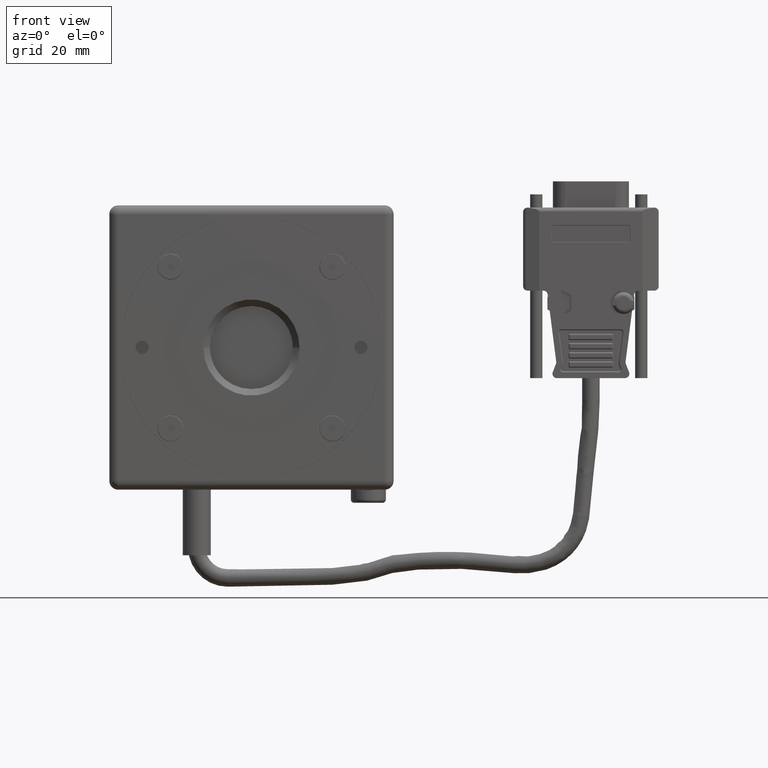
[diagram: clean part render]
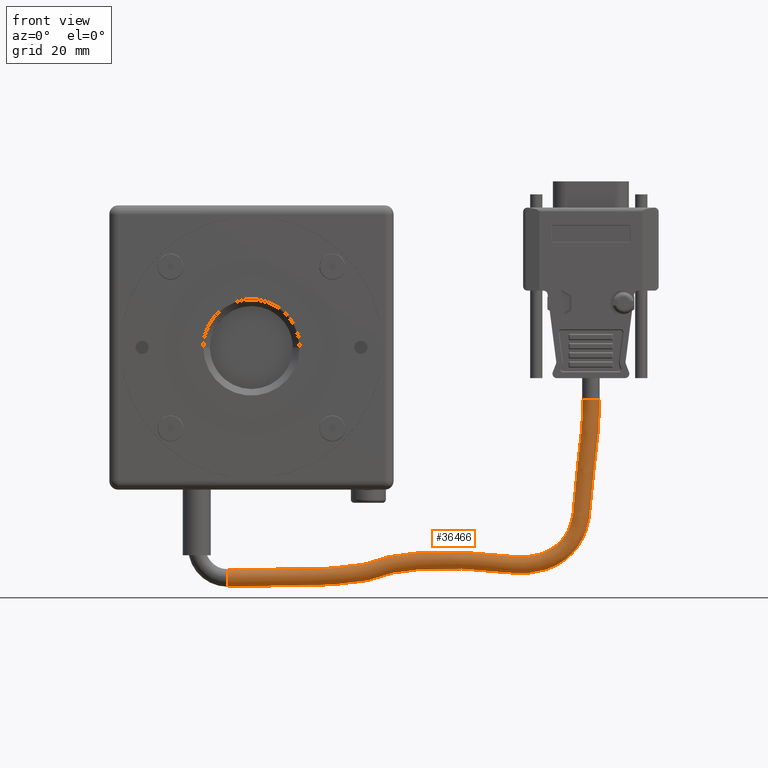
[diagram: same view with one face highlighted and labeled with its STEP entity id]
A machine part, front view. The second image highlights one B-rep face of the part: STEP entity #36466.
In plain terms, the highlighted face is a freeform B-spline surface patch.
Its self-contained STEP definition (entity closure, byte-faithful):
#159 = CARTESIAN_POINT ( 'NONE',  ( 26.18031135847389734, 8.594251661636770123, -49.75526893230109948 ) ) ;
#771 = CARTESIAN_POINT ( 'NONE',  ( 26.95663252120139930, 8.361872805652700080, -52.70969915211109935 ) ) ;
#948 = CARTESIAN_POINT ( 'NONE',  ( 74.81228610184200534, 9.131163623069181057, -25.28025515376619836 ) ) ;
#972 = CARTESIAN_POINT ( 'NONE',  ( 23.53500575126230032, 8.080911860483370290, -51.00779947442729423 ) ) ;
#1157 = CARTESIAN_POINT ( 'NONE',  ( 28.63113973919019983, 9.131163623069191715, -48.61853963026069891 ) ) ;
#1181 = CARTESIAN_POINT ( 'NONE',  ( 23.64569939889049977, 7.949545518040059378, -52.20404720577050028 ) ) ;
#1385 = CARTESIAN_POINT ( 'NONE',  ( 31.80338191991370067, 9.131163623069191715, -47.74780247666389243 ) ) ;
#1405 = CARTESIAN_POINT ( 'NONE',  ( 68.62212123036789535, 7.949545518040059378, -48.88649633827099450 ) ) ;
#1587 = CARTESIAN_POINT ( 'NONE',  ( 27.87414163134669920, 9.131163623069181057, -48.89281985560339905 ) ) ;
#1610 = CARTESIAN_POINT ( 'NONE',  ( 27.83103989088519725, 8.080911860483380948, -49.87624758810920156 ) ) ;
#1770 = CARTESIAN_POINT ( 'NONE',  ( 78.87626390488098593, 8.425974528290661070, -11.99280345650299218 ) ) ;
#1819 = CARTESIAN_POINT ( 'NONE',  ( 79.62215232788869912, 10.00000000000000000, -11.99280345650299928 ) ) ;
#2046 = CARTESIAN_POINT ( 'NONE',  ( 31.27227696123909695, 10.00000000000000000, -51.75450217347029991 ) ) ;
#2245 = CARTESIAN_POINT ( 'NONE',  ( 69.16217605017111225, 8.361872805652708962, -49.99946688267060324 ) ) ;
#2446 = CARTESIAN_POINT ( 'NONE',  ( 77.93863295144920755, 10.00000000000000000, -30.69413562672749762 ) ) ;
#2650 = CARTESIAN_POINT ( 'NONE',  ( 44.47319135313559713, 10.00000000000000000, -50.47784886212969724 ) ) ;
#2896 = CARTESIAN_POINT ( 'NONE',  ( 50.18714193146750802, 10.00000000000000000, -50.66608199942090351 ) ) ;
#3313 = CARTESIAN_POINT ( 'NONE',  ( 23.45128163584819703, 9.131163479876750699, -50.10349296217269455 ) ) ;
#3363 = CARTESIAN_POINT ( 'NONE',  ( -5.453913893494759968, 9.401601399316229291, -54.68831693468300159 ) ) ;
#3715 = CARTESIAN_POINT ( 'NONE',  ( 38.11571756769220087, 9.131163479876750699, -46.88733830446920336 ) ) ;
#3919 = CARTESIAN_POINT ( 'NONE',  ( 38.17811516388759685, 8.080911860483370290, -47.79090664084470319 ) ) ;
#4111 = CARTESIAN_POINT ( 'NONE',  ( 74.04699277715069172, 9.131163623069191715, -32.32333939750819951 ) ) ;
#4132 = CARTESIAN_POINT ( 'NONE',  ( -5.453913893494759968, 8.361872805652700080, -54.18589274550730295 ) ) ;
#4305 = CARTESIAN_POINT ( 'NONE',  ( 71.02879771056058189, 9.131163623069181057, -43.96551939401319942 ) ) ;
#4325 = CARTESIAN_POINT ( 'NONE',  ( 33.40648793696419716, 8.080911860483370290, -48.33048998664639839 ) ) ;
#4516 = CARTESIAN_POINT ( 'NONE',  ( 53.78038645207209356, 9.131163623069191715, -47.18262561935669908 ) ) ;
#4542 = CARTESIAN_POINT ( 'NONE',  ( 76.07704327603160266, 8.594251661636770123, -16.09036882613499841 ) ) ;
#4718 = CARTESIAN_POINT ( 'NONE',  ( 79.62215232788869912, 10.00000000000000000, -11.99280345650299928 ) ) ;
#4747 = CARTESIAN_POINT ( 'NONE',  ( 52.10246080053369866, 9.131163623069191715, -47.02530900306780381 ) ) ;
#4772 = CARTESIAN_POINT ( 'NONE',  ( 76.72348328632989478, 8.080911860483370290, -11.99280345650299928 ) ) ;
#4924 = CARTESIAN_POINT ( 'NONE',  ( 78.49627403889677169, 8.187194641589938371, -11.99280345650299573 ) ) ;
#4976 = CARTESIAN_POINT ( 'NONE',  ( 50.18714193146750802, 10.00000000000000000, -50.66608199942090351 ) ) ;
#5142 = B_SPLINE_CURVE_WITH_KNOTS ( 'NONE', 3,
 ( #23453, #39240, #10388, #36063, #20316, #33562, #40305, #18388, #15026, #8512, #4924, #1770, #5343, #34175, #27683, #31235, #5549, #4718 ),
 .UNSPECIFIED., .F., .F.,
 ( 4, 2, 2, 2, 2, 2, 2, 2, 4 ),
 ( 0.000000000000000000, 0.1250000000000000000, 0.2500000000000000000, 0.3750000000000000000, 0.5000000000000000000, 0.6250000000000000000, 0.7500000000000000000, 0.8750000000000000000, 1.000000000000000000 ),
 .UNSPECIFIED. ) ;
#5343 = CARTESIAN_POINT ( 'NONE',  ( 79.04593819644335895, 8.577612628838428677, -11.99280345650299395 ) ) ;
#5403 = CARTESIAN_POINT ( 'NONE',  ( 59.13915167317840371, 8.361872805652700080, -51.08204271905488980 ) ) ;
#5451 = CARTESIAN_POINT ( 'NONE',  ( 3.156507300013169814, 10.00000000000000000, -54.68831693468300159 ) ) ;
#5549 = CARTESIAN_POINT ( 'NONE',  ( 79.62215232788869912, 9.775607412921281991, -11.99280345650299573 ) ) ;
#5600 = CARTESIAN_POINT ( 'NONE',  ( 50.18715518971440304, 9.401601399316229291, -50.66608488657889353 ) ) ;
#5637 = CARTESIAN_POINT ( 'NONE',  ( 76.83822991529379465, 10.00000000000000000, -41.91618704674380069 ) ) ;
#5792 = CARTESIAN_POINT ( 'NONE',  ( 29.99879980739260077, 9.401601399316229291, -52.15858377725389516 ) ) ;
#5976 = CARTESIAN_POINT ( 'NONE',  ( 75.81933112705499411, 9.131623541843559622, -11.99280345650299928 ) ) ;
#6263 = CARTESIAN_POINT ( 'NONE',  ( 33.31636202987490236, 8.594251661636759465, -47.68936614891070036 ) ) ;
#6462 = CARTESIAN_POINT ( 'NONE',  ( 73.84202933722319528, 9.131163479876740041, -36.33860714833080152 ) ) ;
#6513 = CARTESIAN_POINT ( 'NONE',  ( -5.453913893494769738, 10.00000000000000000, -54.68831693468300159 ) ) ;
#6677 = CARTESIAN_POINT ( 'NONE',  ( 63.77694163641329794, 8.594251661636759465, -48.20895064553410236 ) ) ;
#7085 = CARTESIAN_POINT ( 'NONE',  ( 30.55151303057740009, 8.080911860483370290, -48.94122344829860083 ) ) ;
#7267 = CARTESIAN_POINT ( 'NONE',  ( 73.94451102273660581, 9.131163623069181057, -34.33097327153610934 ) ) ;
#7290 = CARTESIAN_POINT ( 'NONE',  ( 55.35509803920700023, 8.080911860483380948, -48.23959804872180257 ) ) ;
#7482 = CARTESIAN_POINT ( 'NONE',  ( 75.14665999025430665, 9.131163623069181057, -22.34954634257200112 ) ) ;
#7505 = CARTESIAN_POINT ( 'NONE',  ( 76.03959857329940064, 8.080911860483380948, -22.88963306837419864 ) ) ;
#7692 = CARTESIAN_POINT ( 'NONE',  ( 36.18155229556710140, 9.131163623069181057, -47.10553250178589479 ) ) ;
#7712 = CARTESIAN_POINT ( 'NONE',  ( 76.07704327603160266, 8.594251661636770123, -11.99280345650299928 ) ) ;
#7907 = CARTESIAN_POINT ( 'NONE',  ( 32.61805028934179518, 9.131163623069181057, -47.60644390709960305 ) ) ;
#7932 = CARTESIAN_POINT ( 'NONE',  ( 3.153023570603019632, 8.361872805652700080, -54.18589274550730295 ) ) ;
#8138 = CARTESIAN_POINT ( 'NONE',  ( 70.18225426691620328, 9.131163623069191715, -44.94648982542589977 ) ) ;
#8162 = CARTESIAN_POINT ( 'NONE',  ( 15.21791553571540057, 9.401601399316229291, -54.50863875091230426 ) ) ;
#8512 = CARTESIAN_POINT ( 'NONE',  ( 78.28603931373957892, 8.100103659892539554, -11.99280345650299751 ) ) ;
#8564 = CARTESIAN_POINT ( 'NONE',  ( 76.34602931551530958, 8.361872805652700080, -41.76415107456309528 ) ) ;
#8778 = CARTESIAN_POINT ( 'NONE',  ( 79.62215232788869912, 9.401601399316229291, -11.99280345650299928 ) ) ;
#8828 = CARTESIAN_POINT ( 'NONE',  ( 29.99843418388410043, 10.00000000000000000, -52.15867678578100453 ) ) ;
#8940 = ORIENTED_EDGE ( 'NONE', *, *, #11088, .F. ) ;
#8974 = CARTESIAN_POINT ( 'NONE',  ( 77.13931597836050003, 8.361872805652689422, -36.47110528814399544 ) ) ;
#9014 = CARTESIAN_POINT ( 'NONE',  ( 78.90879333579060528, 10.00000000000000000, -23.29669238185569924 ) ) ;
#9220 = CARTESIAN_POINT ( 'NONE',  ( 77.64111683582380863, 10.00000000000000000, -36.49117046966799904 ) ) ;
#9633 = VERTEX_POINT ( 'NONE', #27819 ) ;
#9640 = CARTESIAN_POINT ( 'NONE',  ( 28.71922818070569861, 9.131163479876740041, -48.57433793111140119 ) ) ;
#9686 = CARTESIAN_POINT ( 'NONE',  ( -5.453913893494759968, 8.080911860483370290, -51.78964789312419725 ) ) ;
#9839 = CARTESIAN_POINT ( 'NONE',  ( 50.40839177826129713, 8.594251661636770123, -47.12627307768360652 ) ) ;
#10049 = CARTESIAN_POINT ( 'NONE',  ( 75.81837593933809671, 9.131163479876750699, -16.07514509790649626 ) ) ;
#10163 = EDGE_CURVE ( 'NONE', #9633, #33287, #37879, .T. ) ;
#10249 = CARTESIAN_POINT ( 'NONE',  ( 28.80621856193450014, 8.594251661636759465, -48.81808269678150225 ) ) ;
#10388 = CARTESIAN_POINT ( 'NONE',  ( 76.04936005796797360, 8.744342200751550109, -11.99280345650299928 ) ) ;
#10416 = CARTESIAN_POINT ( 'NONE',  ( 72.92480848983079511, 9.131163623069191715, -40.58203784414799742 ) ) ;
#10438 = CARTESIAN_POINT ( 'NONE',  ( 50.29332692823059858, 7.949545518040059378, -48.96724385649110189 ) ) ;
#10630 = CARTESIAN_POINT ( 'NONE',  ( 61.61116919951200543, 9.131163623069181057, -47.87339134726179424 ) ) ;
#10654 = CARTESIAN_POINT ( 'NONE',  ( 33.57335261102240054, 7.949545518040059378, -49.51795309020260305 ) ) ;
#10874 = CARTESIAN_POINT ( 'NONE',  ( 29.42631471453660197, 7.949545518040059378, -50.55543263328679870 ) ) ;
#11061 = CARTESIAN_POINT ( 'NONE',  ( 29.15756396327159905, 9.131163623069191715, -48.43482237142159619 ) ) ;
#11084 = CARTESIAN_POINT ( 'NONE',  ( 77.92077010635719603, 7.949545518040059378, -16.19893182539600218 ) ) ;
#11088 = EDGE_CURVE ( 'NONE', #25181, #11286, #5142, .T. ) ;
#11281 = CARTESIAN_POINT ( 'NONE',  ( 20.67094813567929990, 9.131163623069191715, -50.30556177848880139 ) ) ;
#11286 = VERTEX_POINT ( 'NONE', #25311 ) ;
#11302 = CARTESIAN_POINT ( 'NONE',  ( 59.25836506663029724, 7.949545518040059378, -49.88994666697519875 ) ) ;
#11708 = CARTESIAN_POINT ( 'NONE',  ( 3.156554336057880050, 9.401601399316229291, -54.68831693468300159 ) ) ;
#11909 = CARTESIAN_POINT ( 'NONE',  ( 27.08481906306359832, 10.00000000000000000, -53.19757564393709259 ) ) ;
#12124 = CARTESIAN_POINT ( 'NONE',  ( 31.27232112239369854, 9.401601399316229291, -51.75452151905409437 ) ) ;
#12169 = CARTESIAN_POINT ( 'NONE',  ( 44.47319135313559713, 10.00000000000000000, -50.47784886212969724 ) ) ;
#12573 = CARTESIAN_POINT ( 'NONE',  ( 71.25675322186189931, 9.131163479876750699, -44.09442399391860334 ) ) ;
#12990 = CARTESIAN_POINT ( 'NONE',  ( 30.39077777371069899, 8.594251661636770123, -48.31382842640690001 ) ) ;
#13238 = CARTESIAN_POINT ( 'NONE',  ( -5.453913893494759968, 9.131623787557160199, -50.88549561549499600 ) ) ;
#13395 = CARTESIAN_POINT ( 'NONE',  ( 50.42453514468979847, 9.131163479876750699, -46.86799245566150773 ) ) ;
#13580 = CARTESIAN_POINT ( 'NONE',  ( 58.13120777560720143, 9.131163623069191715, -47.64635773217790415 ) ) ;
#13601 = CARTESIAN_POINT ( 'NONE',  ( 26.34524625582049850, 8.080911860483380948, -50.38295894293310084 ) ) ;
#13784 = CARTESIAN_POINT ( 'NONE',  ( 27.16254985613620221, 9.131163623069191715, -49.14800968359290323 ) ) ;
#13809 = CARTESIAN_POINT ( 'NONE',  ( 15.16985130657540104, 7.949545518040059378, -52.80941046865879684 ) ) ;
#13994 = CARTESIAN_POINT ( 'NONE',  ( 38.20789706003289865, 9.131163623069191715, -46.96033699992470645 ) ) ;
#14021 = CARTESIAN_POINT ( 'NONE',  ( -5.453913893494759968, 8.080911860483370290, -51.78964789312419725 ) ) ;
#14219 = CARTESIAN_POINT ( 'NONE',  ( 59.33531009058300043, 9.131163623069181057, -47.74141807301540297 ) ) ;
#14243 = CARTESIAN_POINT ( 'NONE',  ( 72.88172367973649557, 7.949545518040059378, -45.51175300234510246 ) ) ;
#14421 = CARTESIAN_POINT ( 'NONE',  ( 26.81313802070809871, 9.131163623069181057, -49.26670723036900057 ) ) ;
#14444 = CARTESIAN_POINT ( 'NONE',  ( 33.74057410945639646, 8.361872805652700080, -50.70702696980870172 ) ) ;
#14883 = CARTESIAN_POINT ( 'NONE',  ( 77.64111683582380863, 10.00000000000000000, -36.49117046966799904 ) ) ;
#15026 = CARTESIAN_POINT ( 'NONE',  ( 77.84851024854363288, 8.000221481040293625, -11.99280345650299928 ) ) ;
#15078 = CARTESIAN_POINT ( 'NONE',  ( 28.85353365900790124, 9.401601399316229291, -52.58843852000700281 ) ) ;
#15279 = CARTESIAN_POINT ( 'NONE',  ( 78.90879333579060528, 10.00000000000000000, -23.29669238185569924 ) ) ;
#15494 = CARTESIAN_POINT ( 'NONE',  ( 55.02447939474739513, 10.00000000000000000, -51.12080225404159961 ) ) ;
#15542 = CARTESIAN_POINT ( 'NONE',  ( 69.38850648928648468, 10.00000000000000000, -50.46599396214259770 ) ) ;
#15730 = CARTESIAN_POINT ( 'NONE',  ( 55.02447939474739513, 10.00000000000000000, -51.12080225404159961 ) ) ;
#15735 = CARTESIAN_POINT ( 'NONE',  ( 15.11761342227559979, 8.594251661636759465, -50.96803643689939634 ) ) ;
#16168 = CARTESIAN_POINT ( 'NONE',  ( 23.47520455136799811, 8.594251661636770123, -50.36193294192510450 ) ) ;
#16556 = CARTESIAN_POINT ( 'NONE',  ( 59.46765560473910028, 9.131163479876740041, -47.79956554903549915 ) ) ;
#16766 = CARTESIAN_POINT ( 'NONE',  ( 15.20394584516230019, 8.361872805652700080, -54.00682323242200056 ) ) ;
#16957 = CARTESIAN_POINT ( 'NONE',  ( 74.26393654692709845, 9.131163623069191715, -30.06065986806569867 ) ) ;
#16978 = CARTESIAN_POINT ( 'NONE',  ( 15.13595419297440081, 8.080911860483370290, -51.61364841781030321 ) ) ;
#17161 = CARTESIAN_POINT ( 'NONE',  ( 9.120277782437680614, 9.131163623069191715, -50.79712001305890112 ) ) ;
#17186 = CARTESIAN_POINT ( 'NONE',  ( 63.83257771198010033, 8.080911860483370290, -48.86304863488970085 ) ) ;
#17377 = CARTESIAN_POINT ( 'NONE',  ( 29.74201170429289931, 9.131163623069191715, -48.24880171184300082 ) ) ;
#17405 = CARTESIAN_POINT ( 'NONE',  ( 3.144780548801249687, 7.949545518040059378, -52.98693471315150560 ) ) ;
#17601 = CARTESIAN_POINT ( 'NONE',  ( 44.40423568373750385, 9.131163623069181057, -46.73972045238929951 ) ) ;
#17624 = CARTESIAN_POINT ( 'NONE',  ( 74.40714792227718988, 8.594251661636770123, -30.34143991916279859 ) ) ;
#17825 = CARTESIAN_POINT ( 'NONE',  ( 23.80308077626330032, 10.00000000000000000, -53.90392392813999578 ) ) ;
#18001 = CARTESIAN_POINT ( 'NONE',  ( 75.78791191293690588, 9.131163553076639516, -14.37966857232540008 ) ) ;
#18026 = CARTESIAN_POINT ( 'NONE',  ( 64.08190718532149788, 9.401601399316229291, -51.79613031770490039 ) ) ;
#18249 = CARTESIAN_POINT ( 'NONE',  ( 78.41148780047738853, 8.361872805652700080, -23.22613368627100172 ) ) ;
#18292 = CARTESIAN_POINT ( 'NONE',  ( 15.21811078762899960, 10.00000000000000000, -54.50861485520960059 ) ) ;
#18388 = CARTESIAN_POINT ( 'NONE',  ( 77.62130900020636659, 7.987451535506710165, -11.99280345650299751 ) ) ;
#18444 = CARTESIAN_POINT ( 'NONE',  ( 33.81054736007340011, 10.00000000000000000, -51.20534729594459833 ) ) ;
#18593 = B_SPLINE_SURFACE_WITH_KNOTS ( 'NONE', 3, 3, ( 
 ( #29014, #22288, #41424, #3313, #35515, #19734, #9640, #29210, #18912, #3715, #31760, #13395, #38683, #16556, #23096, #35732, #12573, #22481, #6462, #26049, #19313, #10049, #25426 ),
 ( #26261, #39096, #15735, #16168, #159, #28581, #10249, #12990, #6263, #22681, #25842, #9839, #19108, #31956, #6677, #19539, #38886, #22895, #29820, #17624, #36759, #4542, #7712 ),
 ( #14021, #33177, #16978, #972, #13601, #1610, #36343, #7085, #4325, #3919, #26886, #20153, #7290, #20362, #17186, #29623, #30034, #39726, #23294, #33390, #7505, #20790, #4772 ),
 ( #39296, #17405, #13809, #1181, #32762, #30258, #10874, #23724, #10654, #26662, #36548, #10438, #27099, #11302, #20566, #1405, #14243, #39923, #39502, #19936, #36117, #11084, #23511 ),
 ( #4132, #7932, #16766, #23933, #771, #33617, #32977, #30468, #14444, #27300, #40141, #35920, #26463, #5403, #37589, #2245, #27738, #8564, #8974, #30886, #18249, #21402, #40973 ),
 ( #21815, #11708, #8162, #37798, #31495, #15078, #5792, #12124, #21621, #34226, #40564, #5600, #34444, #21000, #18026, #31101, #24974, #34637, #24365, #27926, #33820, #24561, #8778 ),
 ( #37386, #40757, #27525, #17825, #11909, #24760, #18640, #2046, #18444, #24153, #2650, #4976, #15494, #31291, #28341, #41177, #36987, #30666, #14883, #2446, #15279, #28132, #1819 ) ),
 .UNSPECIFIED., .F., .F., .F.,
 ( 4, 1, 1, 1, 4 ),
 ( 4, 1, 1, 1, 1, 1, 1, 1, 1, 1, 1, 1, 1, 1, 1, 1, 1, 1, 1, 1, 4 ),
 ( 0.4487989505128279766, 1.346396851538479877, 1.570796326794899889, 2.243994752564140160, 3.141592653589790007 ),
 ( 1.000000000000000000, 1.178571428571429935, 1.357142857142859871, 1.535714285714290028, 1.625000000000000000, 1.714285714285709972, 1.833333333333329929, 1.952380952380949886, 2.190476190476190244, 2.428571428571429713, 2.666666666666670071, 2.904761904761900215, 3.142857142857139685, 3.380952380952380043, 3.857142857142859871, 4.214285714285709972, 4.571428571428570287, 4.928571428571429713, 5.285714285714290028, 5.642857142857140573, 6.000000000000000000 ),
 .UNSPECIFIED. ) ;
#18640 = CARTESIAN_POINT ( 'NONE',  ( 29.99843418388410043, 10.00000000000000000, -52.15867678578100453 ) ) ;
#18906 = CARTESIAN_POINT ( 'NONE',  ( 33.81054736007340011, 10.00000000000000000, -51.20534729594459833 ) ) ;
#18912 = CARTESIAN_POINT ( 'NONE',  ( 33.28030440412970137, 9.131163479876740041, -47.43282396948229973 ) ) ;
#19108 = CARTESIAN_POINT ( 'NONE',  ( 55.42880979012469567, 8.594251661636770123, -47.59705121963079222 ) ) ;
#19313 = CARTESIAN_POINT ( 'NONE',  ( 75.14369195526481349, 9.131163479876740041, -22.76252997859669946 ) ) ;
#19394 = EDGE_CURVE ( 'NONE', #9633, #25181, #26010, .T. ) ;
#19539 = CARTESIAN_POINT ( 'NONE',  ( 67.79160732360840314, 8.594251661636770123, -47.17478570750190414 ) ) ;
#19734 = CARTESIAN_POINT ( 'NONE',  ( 27.51196171588700068, 9.131163479876750699, -49.02931220136770207 ) ) ;
#19936 = CARTESIAN_POINT ( 'NONE',  ( 76.24379258714809282, 7.949545518040059378, -30.52487456548870171 ) ) ;
#20153 = CARTESIAN_POINT ( 'NONE',  ( 50.36804648765109960, 8.080911860483370290, -47.77174639775780207 ) ) ;
#20316 = CARTESIAN_POINT ( 'NONE',  ( 76.55231978945425908, 8.295356232861887946, -11.99280345650299751 ) ) ;
#20341 = CARTESIAN_POINT ( 'NONE',  ( 27.51834574374149867, 9.131163623069181057, -49.02041476959809785 ) ) ;
#20362 = CARTESIAN_POINT ( 'NONE',  ( 59.37758483955920497, 8.080911860483380948, -48.69949864240130211 ) ) ;
#20547 = CARTESIAN_POINT ( 'NONE',  ( 28.23632157112909979, 9.131163623069191715, -48.75632757439000642 ) ) ;
#20566 = CARTESIAN_POINT ( 'NONE',  ( 63.93558500996169869, 7.949545518040059378, -50.07453807500559861 ) ) ;
#20762 = CARTESIAN_POINT ( 'NONE',  ( 40.23424182449870301, 9.131163623069191715, -46.81514149806350389 ) ) ;
#20790 = CARTESIAN_POINT ( 'NONE',  ( 76.72348328632989478, 8.080911860483370290, -16.12838066096130163 ) ) ;
#20975 = CARTESIAN_POINT ( 'NONE',  ( 71.87534115420500314, 9.131163623069181057, -42.98454896260059854 ) ) ;
#21000 = CARTESIAN_POINT ( 'NONE',  ( 59.08882957576980033, 9.401601399316229291, -51.58162025226020120 ) ) ;
#21402 = CARTESIAN_POINT ( 'NONE',  ( 79.11972813871300048, 8.361872805652700080, -16.26927288702290042 ) ) ;
#21599 = CARTESIAN_POINT ( 'NONE',  ( 75.73621847383991224, 9.131163574134420813, -15.48189050442799974 ) ) ;
#21621 = CARTESIAN_POINT ( 'NONE',  ( 33.81038618854299926, 9.401601399316229291, -51.20540807094799618 ) ) ;
#21815 = CARTESIAN_POINT ( 'NONE',  ( -5.453913893494759968, 9.401601399316229291, -54.68831693468300159 ) ) ;
#22068 = CARTESIAN_POINT ( 'NONE',  ( 79.62215232788869912, 10.00000000000000000, -16.29900096866879977 ) ) ;
#22284 = CARTESIAN_POINT ( 'NONE',  ( 23.80308077626330032, 10.00000000000000000, -53.90392392813999578 ) ) ;
#22288 = CARTESIAN_POINT ( 'NONE',  ( 3.130274417249329755, 9.131163479876750699, -50.88454054613239919 ) ) ;
#22331 = CARTESIAN_POINT ( 'NONE',  ( -5.453913893494759968, 7.949545518040059378, -52.98693471315150560 ) ) ;
#22481 = CARTESIAN_POINT ( 'NONE',  ( 73.11251719309990449, 9.131163479876740041, -40.76479901385969384 ) ) ;
#22681 = CARTESIAN_POINT ( 'NONE',  ( 38.13354947437520082, 8.594251661636770123, -47.14556590486679966 ) ) ;
#22895 = CARTESIAN_POINT ( 'NONE',  ( 73.36587648119748906, 8.594251661636759465, -40.84309633079880086 ) ) ;
#23096 = CARTESIAN_POINT ( 'NONE',  ( 63.75468279335488830, 9.131163479876740041, -47.94721728388280013 ) ) ;
#23270 = CARTESIAN_POINT ( 'NONE',  ( 73.59885855405839550, 9.131163623069170399, -37.81400442803529671 ) ) ;
#23294 = CARTESIAN_POINT ( 'NONE',  ( 74.74602173575709685, 8.080911860483380948, -36.37492618512060005 ) ) ;
#23453 = CARTESIAN_POINT ( 'NONE',  ( 75.81933112705499411, 9.131623541843559622, -11.99280345650299928 ) ) ;
#23487 = CARTESIAN_POINT ( 'NONE',  ( 66.36828770455399251, 9.131163623069181057, -47.27216809855430313 ) ) ;
#23511 = CARTESIAN_POINT ( 'NONE',  ( 77.92077010635719603, 7.949545518040059378, -11.99280345650299928 ) ) ;
#23724 = CARTESIAN_POINT ( 'NONE',  ( 30.84923094209359817, 7.949545518040059378, -50.10324375487189741 ) ) ;
#23912 = CARTESIAN_POINT ( 'NONE',  ( 31.06492068261399808, 9.131163623069191715, -47.90529176446419513 ) ) ;
#23933 = CARTESIAN_POINT ( 'NONE',  ( 23.75668376245010194, 8.361872805652700080, -53.40191678944600540 ) ) ;
#24122 = CARTESIAN_POINT ( 'NONE',  ( 62.61607427516259605, 9.131163623069181057, -47.82299451225379983 ) ) ;
#24153 = CARTESIAN_POINT ( 'NONE',  ( 38.37794145464279438, 10.00000000000000000, -50.68464812008179621 ) ) ;
#24340 = CARTESIAN_POINT ( 'NONE',  ( 75.61589446810650372, 9.131163623149481268, -18.04747252788299861 ) ) ;
#24365 = CARTESIAN_POINT ( 'NONE',  ( 77.64110680570080092, 9.401601399316220409, -36.49095404294919831 ) ) ;
#24561 = CARTESIAN_POINT ( 'NONE',  ( 79.62215232788869912, 9.401601399316229291, -16.29940234639160224 ) ) ;
#24760 = CARTESIAN_POINT ( 'NONE',  ( 28.85306223624990096, 10.00000000000000000, -52.58857332431879428 ) ) ;
#24808 = CARTESIAN_POINT ( 'NONE',  ( 27.08481906306359832, 10.00000000000000000, -53.19757564393709259 ) ) ;
#24974 = CARTESIAN_POINT ( 'NONE',  ( 74.19684970016830050, 9.401601399316229291, -46.65872576031900110 ) ) ;
#25015 = CARTESIAN_POINT ( 'NONE',  ( 64.08200876101739141, 10.00000000000000000, -51.79607871950790354 ) ) ;
#25181 = VERTEX_POINT ( 'NONE', #39786 ) ;
#25311 = CARTESIAN_POINT ( 'NONE',  ( 79.62215232788869912, 10.00000000000000000, -11.99280345650299928 ) ) ;
#25420 = CARTESIAN_POINT ( 'NONE',  ( 31.27227696123909695, 10.00000000000000000, -51.75450217347029991 ) ) ;
#25426 = CARTESIAN_POINT ( 'NONE',  ( 75.81837593933809671, 9.131163479876750699, -11.99280345650299928 ) ) ;
#25842 = CARTESIAN_POINT ( 'NONE',  ( 44.47141945145779829, 8.594251661636770123, -46.92964154496859663 ) ) ;
#26010 = B_SPLINE_CURVE_WITH_KNOTS ( 'NONE', 3,
 ( #27080, #33367, #17161, #39704, #39902, #11281, #30010, #39271, #30446, #30646, #14421, #13784, #20341, #1587, #20547, #1157, #11061, #17377, #27278, #23912, #1385, #7907, #36740, #7692, #13994, #20762, #36527, #17601, #26440, #33157, #33594, #4747, #4516, #26861, #30232, #13580, #14219, #40120, #10630, #24122, #36960, #23487, #26641, #36321, #8138, #4305, #20975, #33799, #10416, #32954, #23270, #36095, #7267, #4111, #16957, #29801, #948, #7482, #30860, #24340, #21599, #18001, #34201, #5976 ),
 .UNSPECIFIED., .F., .F.,
 ( 4, 3, 3, 3, 3, 3, 3, 3, 3, 3, 3, 3, 3, 3, 3, 3, 3, 3, 3, 3, 3, 4 ),
 ( 4.285207182748905302E-18, 0.03571428571428601068, 0.07142857142857200747, 0.1071428571428579973, 0.1250000000000000000, 0.1428571428571420165, 0.1666666666666660190, 0.1904761904761899938, 0.2380952380952379988, 0.2857142857142860315, 0.3333333333333340365, 0.3809523809523799875, 0.4285714285714279925, 0.4761904761904759975, 0.5714285714285719520, 0.6428571428571420165, 0.7142857142857139685, 0.7857142857142859205, 0.8571428571428579835, 0.9285714285714280480, 0.9785348020337809594, 1.000000000000000000 ),
 .UNSPECIFIED. ) ;
#26049 = CARTESIAN_POINT ( 'NONE',  ( 74.14947460028530202, 9.131163479876750699, -30.31570553034370263 ) ) ;
#26261 = CARTESIAN_POINT ( 'NONE',  ( -5.453913893494759968, 8.594251661636770123, -51.14320788282589803 ) ) ;
#26440 = CARTESIAN_POINT ( 'NONE',  ( 46.45570528141390554, 9.131163623069181057, -46.73649614425229970 ) ) ;
#26463 = CARTESIAN_POINT ( 'NONE',  ( 55.08186687726109909, 8.361872805652700080, -50.62141202611329760 ) ) ;
#26641 = CARTESIAN_POINT ( 'NONE',  ( 67.93369779640320871, 9.131163623069181057, -46.43010387277450235 ) ) ;
#26662 = CARTESIAN_POINT ( 'NONE',  ( 38.26064907319670283, 7.949545518040059378, -48.98615887268140057 ) ) ;
#26861 = CARTESIAN_POINT ( 'NONE',  ( 55.28757319584040175, 9.131163623069191715, -47.33788780163419574 ) ) ;
#26886 = CARTESIAN_POINT ( 'NONE',  ( 44.47174846138999271, 8.080911860483380948, -47.57664480705380328 ) ) ;
#27080 = CARTESIAN_POINT ( 'NONE',  ( -5.453913893494759968, 9.131623787557160199, -50.88549561549499600 ) ) ;
#27099 = CARTESIAN_POINT ( 'NONE',  ( 55.21849635790360367, 7.949545518040059378, -49.42966768741059980 ) ) ;
#27278 = CARTESIAN_POINT ( 'NONE',  ( 30.40346619345349666, 9.131163623069191715, -48.07704673815359797 ) ) ;
#27300 = CARTESIAN_POINT ( 'NONE',  ( 38.34331326211659530, 8.361872805652700080, -50.18307656083879920 ) ) ;
#27303 = B_SPLINE_CURVE_WITH_KNOTS ( 'NONE', 3,
 ( #34278, #5451, #18292, #22284, #24808, #28384, #8828, #25420, #18906, #31544, #12169, #2896, #15730, #34483, #25015, #15542, #38266, #5637, #9220, #38043, #9014, #22068, #28574 ),
 .UNSPECIFIED., .F., .F.,
 ( 4, 1, 1, 1, 1, 1, 1, 1, 1, 1, 1, 1, 1, 1, 1, 1, 1, 1, 1, 1, 4 ),
 ( 0.000000000000000000, 0.03571428571428600374, 0.07142857142857200747, 0.1071428571428579973, 0.1250000000000000000, 0.1428571428571420165, 0.1666666666666660190, 0.1904761904761899938, 0.2380952380952379988, 0.2857142857142860315, 0.3333333333333340365, 0.3809523809523799875, 0.4285714285714279925, 0.4761904761904759975, 0.5714285714285719520, 0.6428571428571420165, 0.7142857142857139685, 0.7857142857142859205, 0.8571428571428579835, 0.9285714285714280480, 1.000000000000000000 ),
 .UNSPECIFIED. ) ;
#27525 = CARTESIAN_POINT ( 'NONE',  ( 15.21811078762899960, 10.00000000000000000, -54.50861485520960059 ) ) ;
#27683 = CARTESIAN_POINT ( 'NONE',  ( 79.43581582867959412, 9.127660192909434755, -11.99280345650299395 ) ) ;
#27738 = CARTESIAN_POINT ( 'NONE',  ( 73.80832698729429353, 8.361872805652689422, -46.32004256861630154 ) ) ;
#27819 = CARTESIAN_POINT ( 'NONE',  ( -5.453913893494759968, 9.131623787557160199, -50.88549561549499600 ) ) ;
#27926 = CARTESIAN_POINT ( 'NONE',  ( 77.93865607959489239, 9.401601399316229291, -30.69417690252300090 ) ) ;
#28132 = CARTESIAN_POINT ( 'NONE',  ( 79.62215232788869912, 10.00000000000000000, -16.29900096866879977 ) ) ;
#28341 = CARTESIAN_POINT ( 'NONE',  ( 64.08200876101739141, 10.00000000000000000, -51.79607871950790354 ) ) ;
#28384 = CARTESIAN_POINT ( 'NONE',  ( 28.85306223624990096, 10.00000000000000000, -52.58857332431879428 ) ) ;
#28525 = CARTESIAN_POINT ( 'NONE',  ( -5.453913893494769738, 10.00000000000000000, -54.68831693468300159 ) ) ;
#28574 = CARTESIAN_POINT ( 'NONE',  ( 79.62215232788869912, 10.00000000000000000, -11.99280345650299928 ) ) ;
#28581 = CARTESIAN_POINT ( 'NONE',  ( 27.60316133532310090, 8.594251661636770123, -49.27135151716469608 ) ) ;
#29014 = CARTESIAN_POINT ( 'NONE',  ( -5.453913893494759968, 9.131163479876750699, -50.88454054613239919 ) ) ;
#29210 = CARTESIAN_POINT ( 'NONE',  ( 30.32645946246769952, 9.131163479876750699, -48.06278111921780294 ) ) ;
#29623 = CARTESIAN_POINT ( 'NONE',  ( 68.08279457566769111, 8.080911860483380948, -47.77491058132649471 ) ) ;
#29801 = CARTESIAN_POINT ( 'NONE',  ( 74.48088031670340570, 9.131163623069181057, -27.79798033862330087 ) ) ;
#29820 = CARTESIAN_POINT ( 'NONE',  ( 74.10037779369969257, 8.594251661636770123, -36.34898138709259996 ) ) ;
#30010 = CARTESIAN_POINT ( 'NONE',  ( 22.59372142665040073, 9.131163623069191715, -50.08464922200299441 ) ) ;
#30034 = CARTESIAN_POINT ( 'NONE',  ( 71.95630390544010879, 8.080911860483370290, -44.70460478055969844 ) ) ;
#30232 = CARTESIAN_POINT ( 'NONE',  ( 56.79475993960889468, 9.131163623069191715, -47.49314998391169240 ) ) ;
#30258 = CARTESIAN_POINT ( 'NONE',  ( 28.25327361894289879, 7.949545518040059378, -50.99654000622479799 ) ) ;
#30446 = CARTESIAN_POINT ( 'NONE',  ( 25.58170780577509973, 9.131163623069191715, -49.62398043778660650 ) ) ;
#30468 = CARTESIAN_POINT ( 'NONE',  ( 31.14733046683089768, 8.361872805652700080, -51.26687117466899934 ) ) ;
#30546 = EDGE_LOOP ( 'NONE', ( #32792, #40342, #40326, #8940 ) ) ;
#30646 = CARTESIAN_POINT ( 'NONE',  ( 26.40266128239720089, 9.131163623069191715, -49.38579829950819544 ) ) ;
#30666 = CARTESIAN_POINT ( 'NONE',  ( 76.83822991529379465, 10.00000000000000000, -41.91618704674380069 ) ) ;
#30860 = CARTESIAN_POINT ( 'NONE',  ( 75.38055025473349247, 9.131163623069181057, -20.29955295876850130 ) ) ;
#30886 = CARTESIAN_POINT ( 'NONE',  ( 77.43813037894130957, 8.361872805652708962, -30.64413400284530198 ) ) ;
#31101 = CARTESIAN_POINT ( 'NONE',  ( 69.38853854532590049, 9.401601399316229291, -50.46621092342580539 ) ) ;
#31235 = CARTESIAN_POINT ( 'NONE',  ( 79.58403579825494489, 9.551262569157026761, -11.99280345650299395 ) ) ;
#31291 = CARTESIAN_POINT ( 'NONE',  ( 59.08905432818589532, 10.00000000000000000, -51.58160251168809651 ) ) ;
#31495 = CARTESIAN_POINT ( 'NONE',  ( 27.08481108426239814, 9.401601399316229291, -53.19763025593459815 ) ) ;
#31544 = CARTESIAN_POINT ( 'NONE',  ( 38.37794145464279438, 10.00000000000000000, -50.68464812008179621 ) ) ;
#31760 = CARTESIAN_POINT ( 'NONE',  ( 44.47129034765769973, 9.131163479876740041, -46.67074809203489849 ) ) ;
#31956 = CARTESIAN_POINT ( 'NONE',  ( 59.44190915986020229, 8.594251661636770123, -48.05675458467560190 ) ) ;
#32762 = CARTESIAN_POINT ( 'NONE',  ( 26.65072312411659894, 7.949545518040059378, -51.54553865695490344 ) ) ;
#32792 = ORIENTED_EDGE ( 'NONE', *, *, #19394, .F. ) ;
#32954 = CARTESIAN_POINT ( 'NONE',  ( 73.35568783979410057, 9.131163623069181057, -39.28940171050669505 ) ) ;
#32977 = CARTESIAN_POINT ( 'NONE',  ( 29.82932376544010111, 8.361872805652700080, -51.68527420233470338 ) ) ;
#33157 = CARTESIAN_POINT ( 'NONE',  ( 48.44012021520460110, 9.131163623069191715, -46.80224426551569650 ) ) ;
#33177 = CARTESIAN_POINT ( 'NONE',  ( 3.136512905789879735, 8.080911860483370290, -51.78964789312419725 ) ) ;
#33287 = VERTEX_POINT ( 'NONE', #28525 ) ;
#33367 = CARTESIAN_POINT ( 'NONE',  ( 3.130267931594580055, 9.131163623233259585, -50.88454047706769501 ) ) ;
#33390 = CARTESIAN_POINT ( 'NONE',  ( 75.05110181138330461, 8.080911860483370290, -30.40574967361450121 ) ) ;
#33562 = CARTESIAN_POINT ( 'NONE',  ( 76.95667333039946811, 8.100660710395160891, -11.99280345650299751 ) ) ;
#33594 = CARTESIAN_POINT ( 'NONE',  ( 50.27129050786920317, 9.131163623069191715, -46.91377663429179989 ) ) ;
#33617 = CARTESIAN_POINT ( 'NONE',  ( 28.67573428344250175, 8.361872805652700080, -52.11849980332490873 ) ) ;
#33799 = CARTESIAN_POINT ( 'NONE',  ( 72.49392913986740439, 9.131163623069191715, -41.87467397778929978 ) ) ;
#33820 = CARTESIAN_POINT ( 'NONE',  ( 78.90876763479599276, 9.401601399316229291, -23.29670121465389698 ) ) ;
#34175 = CARTESIAN_POINT ( 'NONE',  ( 79.32574392504098171, 8.928492788989258244, -11.99280345650299218 ) ) ;
#34201 = CARTESIAN_POINT ( 'NONE',  ( 75.81837591858329972, 9.131163522957219669, -13.21958344274399977 ) ) ;
#34226 = CARTESIAN_POINT ( 'NONE',  ( 38.37792184485589786, 9.401601399316229291, -50.68465191307220863 ) ) ;
#34278 = CARTESIAN_POINT ( 'NONE',  ( -5.453913893494769738, 10.00000000000000000, -54.68831693468300159 ) ) ;
#34444 = CARTESIAN_POINT ( 'NONE',  ( 55.02426754105179896, 9.401601399316229291, -51.12078461407089236 ) ) ;
#34483 = CARTESIAN_POINT ( 'NONE',  ( 59.08905432818589532, 10.00000000000000000, -51.58160251168809651 ) ) ;
#34637 = CARTESIAN_POINT ( 'NONE',  ( 76.83844950028290555, 9.401601399316229291, -41.91607201279919792 ) ) ;
#35160 = CARTESIAN_POINT ( 'NONE',  ( -5.453913893494759968, 8.361872805652700080, -54.18589274550730295 ) ) ;
#35315 = FACE_OUTER_BOUND ( 'NONE', #30546, .T. ) ;
#35515 = CARTESIAN_POINT ( 'NONE',  ( 26.11431436745309753, 9.131163479876740041, -49.50410239090649611 ) ) ;
#35732 = CARTESIAN_POINT ( 'NONE',  ( 67.67509019419640026, 9.131163479876750699, -46.93464360483670106 ) ) ;
#35920 = CARTESIAN_POINT ( 'NONE',  ( 50.21849287980970189, 8.361872805652700080, -50.16440781024749640 ) ) ;
#36063 = CARTESIAN_POINT ( 'NONE',  ( 76.36672204890147952, 8.427026113459632484, -11.99280345650299395 ) ) ;
#36095 = CARTESIAN_POINT ( 'NONE',  ( 73.77168478839750776, 9.131163623069181057, -36.07248884978569947 ) ) ;
#36117 = CARTESIAN_POINT ( 'NONE',  ( 77.22470620128029850, 7.949545518040059378, -23.05776942753350056 ) ) ;
#36321 = CARTESIAN_POINT ( 'NONE',  ( 69.10775536529000362, 9.131163623069181057, -45.79855570343979565 ) ) ;
#36343 = CARTESIAN_POINT ( 'NONE',  ( 29.02358671213420038, 8.080911860483370290, -49.42723734158490601 ) ) ;
#36466 = ADVANCED_FACE ( 'NONE', ( #35315 ), #18593, .T. ) ;
#36527 = CARTESIAN_POINT ( 'NONE',  ( 42.35276608606099558, 9.131163623069181057, -46.74294476052629932 ) ) ;
#36548 = CARTESIAN_POINT ( 'NONE',  ( 44.47233006099039443, 7.949545518040059378, -48.77498286341369749 ) ) ;
#36740 = CARTESIAN_POINT ( 'NONE',  ( 34.24738702819779235, 9.131163623069181057, -47.32372676797089639 ) ) ;
#36759 = CARTESIAN_POINT ( 'NONE',  ( 75.39972922604481198, 8.594251661636770123, -22.79885452245899913 ) ) ;
#36960 = CARTESIAN_POINT ( 'NONE',  ( 64.62588442646369913, 9.131163623069181057, -47.72220084223770442 ) ) ;
#36987 = CARTESIAN_POINT ( 'NONE',  ( 74.19670896439430408, 10.00000000000000000, -46.65874488152979893 ) ) ;
#37386 = CARTESIAN_POINT ( 'NONE',  ( -5.453913893494759968, 10.00000000000000000, -54.68831693468300159 ) ) ;
#37589 = CARTESIAN_POINT ( 'NONE',  ( 64.03881418062960051, 8.361872805652689422, -51.28767888307979916 ) ) ;
#37798 = CARTESIAN_POINT ( 'NONE',  ( 23.80290360984210096, 9.401601399316229291, -53.90398624526769567 ) ) ;
#37879 = B_SPLINE_CURVE_WITH_KNOTS ( 'NONE', 3,
 ( #13238, #38940, #9686, #22331, #35160, #3363, #6513 ),
 .UNSPECIFIED., .F., .F.,
 ( 4, 1, 1, 1, 4 ),
 ( 0.000000000000000000, 0.3333333333333325377, 0.4166666666666682950, 0.6666666666666681840, 1.000000000000000000 ),
 .UNSPECIFIED. ) ;
#38043 = CARTESIAN_POINT ( 'NONE',  ( 77.93863295144920755, 10.00000000000000000, -30.69413562672749762 ) ) ;
#38266 = CARTESIAN_POINT ( 'NONE',  ( 74.19670896439430408, 10.00000000000000000, -46.65874488152979893 ) ) ;
#38683 = CARTESIAN_POINT ( 'NONE',  ( 55.45831209574240006, 9.131163479876750699, -47.33994230421550498 ) ) ;
#38886 = CARTESIAN_POINT ( 'NONE',  ( 71.45667867910519533, 8.594251661636770123, -44.26880487807849818 ) ) ;
#38940 = CARTESIAN_POINT ( 'NONE',  ( -5.453913893494759968, 8.594251661636770123, -51.14320788282589803 ) ) ;
#39096 = CARTESIAN_POINT ( 'NONE',  ( 3.132058432457369701, 8.594251661636770123, -51.14320788282589803 ) ) ;
#39240 = CARTESIAN_POINT ( 'NONE',  ( 75.91766333171331382, 8.929920893086455536, -11.99280345650299928 ) ) ;
#39271 = CARTESIAN_POINT ( 'NONE',  ( 24.51649471762159749, 9.131163623069191715, -49.86373666551709505 ) ) ;
#39296 = CARTESIAN_POINT ( 'NONE',  ( -5.453913893494759968, 7.949545518040059378, -52.98693471315150560 ) ) ;
#39502 = CARTESIAN_POINT ( 'NONE',  ( 75.94183042691008723, 7.949545518040059378, -36.42289906080540618 ) ) ;
#39704 = CARTESIAN_POINT ( 'NONE',  ( 13.50544621216410057, 9.131163623069191715, -50.65237533839439266 ) ) ;
#39726 = CARTESIAN_POINT ( 'NONE',  ( 73.99903242893869049, 8.080911860483370290, -41.03878026626949804 ) ) ;
#39786 = CARTESIAN_POINT ( 'NONE',  ( 75.81933112705499411, 9.131623541843559622, -11.99280345650299928 ) ) ;
#39902 = CARTESIAN_POINT ( 'NONE',  ( 17.89061464189050099, 9.131163623069191715, -50.50763066372990551 ) ) ;
#39923 = CARTESIAN_POINT ( 'NONE',  ( 75.17179678950250832, 7.949545518040059378, -41.40116853445600498 ) ) ;
#40120 = CARTESIAN_POINT ( 'NONE',  ( 60.53941240555879943, 9.131163623069181057, -47.83647841385300126 ) ) ;
#40141 = CARTESIAN_POINT ( 'NONE',  ( 44.47297015453770541, 8.361872805652700080, -49.97497693017169951 ) ) ;
#40305 = CARTESIAN_POINT ( 'NONE',  ( 77.17534309774370627, 8.037676493288349988, -11.99280345650299751 ) ) ;
#40326 = ORIENTED_EDGE ( 'NONE', *, *, #41579, .T. ) ;
#40342 = ORIENTED_EDGE ( 'NONE', *, *, #10163, .T. ) ;
#40564 = CARTESIAN_POINT ( 'NONE',  ( 44.47311632465299880, 9.401601399316229291, -50.47787054424870234 ) ) ;
#40757 = CARTESIAN_POINT ( 'NONE',  ( 3.156507300013169814, 10.00000000000000000, -54.68831693468300159 ) ) ;
#40973 = CARTESIAN_POINT ( 'NONE',  ( 79.11972813871300048, 8.361872805652700080, -11.99280345650299928 ) ) ;
#41177 = CARTESIAN_POINT ( 'NONE',  ( 69.38850648928648468, 10.00000000000000000, -50.46599396214259770 ) ) ;
#41424 = CARTESIAN_POINT ( 'NONE',  ( 15.11028115005730044, 9.131163479876740041, -50.70969961786849467 ) ) ;
#41579 = EDGE_CURVE ( 'NONE', #33287, #11286, #27303, .T. ) ;